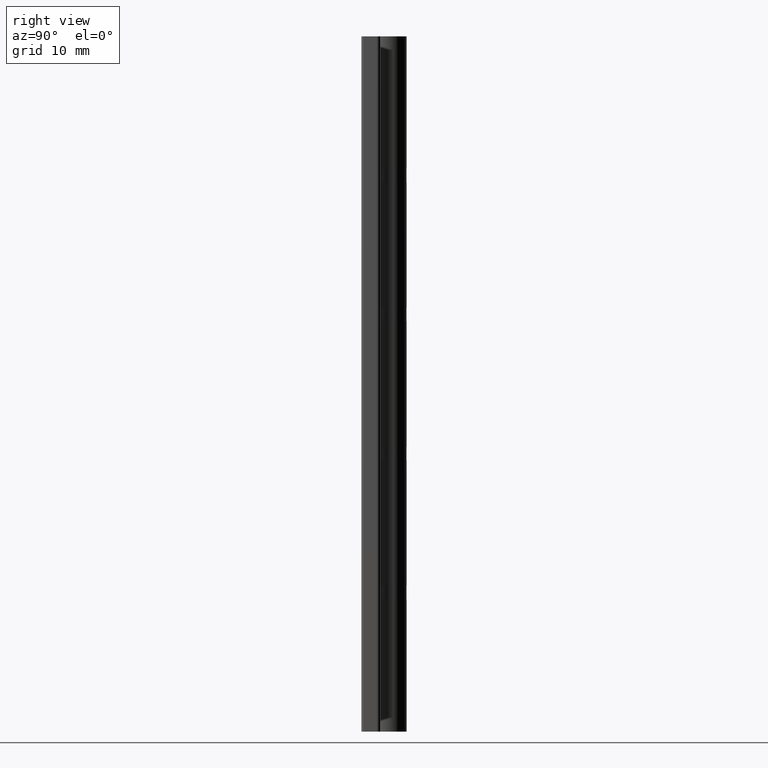
[diagram: clean part render]
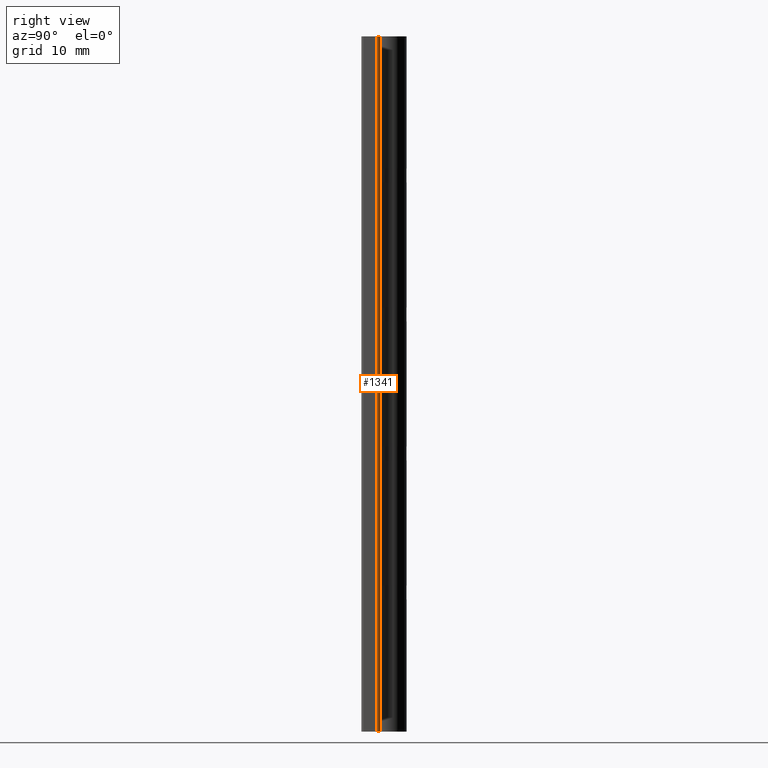
[diagram: same view with one face highlighted and labeled with its STEP entity id]
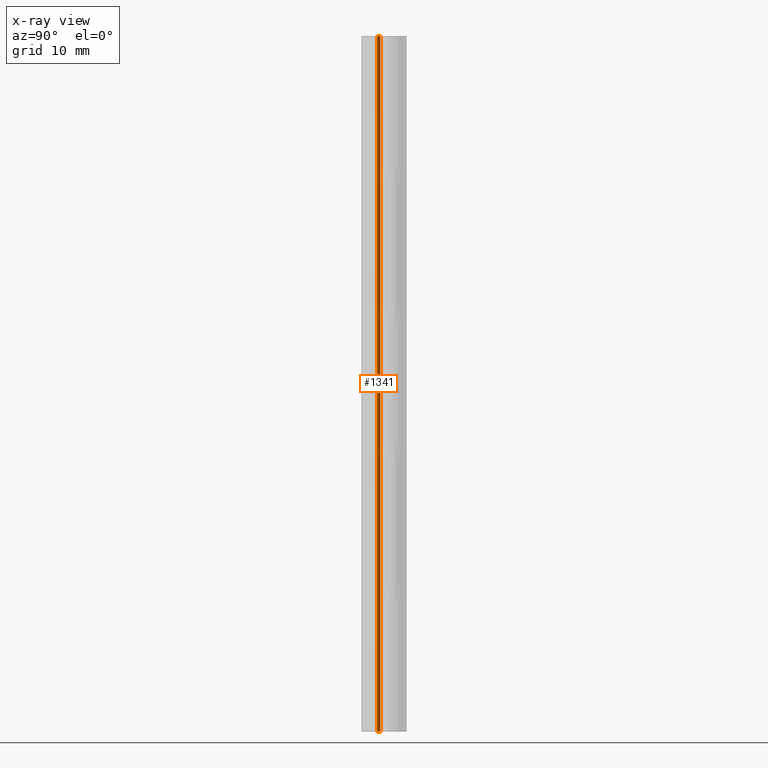
[diagram: x-ray of the same camera — body ghosted, the highlighted face saturated]
A machine part, right view. The second image highlights one B-rep face of the part: STEP entity #1341.
The next image is the same camera in x-ray: the body ghosted, the highlighted face saturated — about 0% of this face is hidden behind the body in this view.
In plain terms, the highlighted cylindrical surface (edge-blend (fillet) strip) has radius 0.5 mm, axis along (0, 0, -1).
Its self-contained STEP definition (entity closure, byte-faithful):
#92=CYLINDRICAL_SURFACE('',#1494,0.5);
#213=CIRCLE('',#1474,0.5);
#219=CIRCLE('',#1493,0.5);
#292=FACE_OUTER_BOUND('',#406,.T.);
#406=EDGE_LOOP('',(#1207,#1208,#1209,#1210));
#518=LINE('',#2283,#609);
#520=LINE('',#2289,#611);
#609=VECTOR('',#1881,100.);
#611=VECTOR('',#1889,100.);
#720=VERTEX_POINT('',#2240);
#721=VERTEX_POINT('',#2242);
#728=VERTEX_POINT('',#2281);
#729=VERTEX_POINT('',#2285);
#874=EDGE_CURVE('',#721,#720,#213,.T.);
#895=EDGE_CURVE('',#720,#728,#518,.T.);
#897=EDGE_CURVE('',#728,#729,#219,.T.);
#898=EDGE_CURVE('',#729,#721,#520,.T.);
#1207=ORIENTED_EDGE('',*,*,#897,.T.);
#1208=ORIENTED_EDGE('',*,*,#898,.T.);
#1209=ORIENTED_EDGE('',*,*,#874,.T.);
#1210=ORIENTED_EDGE('',*,*,#895,.T.);
#1341=ADVANCED_FACE('',(#292),#92,.T.);
#1474=AXIS2_PLACEMENT_3D('',#2243,#1830,#1831);
#1493=AXIS2_PLACEMENT_3D('',#2287,#1885,#1886);
#1494=AXIS2_PLACEMENT_3D('',#2288,#1887,#1888);
#1830=DIRECTION('center_axis',(0.,0.,-1.));
#1831=DIRECTION('ref_axis',(0.707106781186549,0.707106781186546,0.));
#1881=DIRECTION('',(0.,0.,-1.));
#1885=DIRECTION('center_axis',(0.,0.,1.));
#1886=DIRECTION('ref_axis',(0.707106781186549,0.707106781186546,0.));
#1887=DIRECTION('center_axis',(0.,0.,-1.));
#1888=DIRECTION('ref_axis',(0.707106781186549,0.707106781186546,0.));
#1889=DIRECTION('',(0.,0.,1.));
#2240=CARTESIAN_POINT('',(16.,-1.15,0.));
#2242=CARTESIAN_POINT('',(15.5,-0.649999999999999,0.));
#2243=CARTESIAN_POINT('Origin',(15.5,-1.15,0.));
#2281=CARTESIAN_POINT('',(16.,-1.15,-100.));
#2283=CARTESIAN_POINT('',(16.,-1.15,0.));
#2285=CARTESIAN_POINT('',(15.5,-0.649999999999999,-100.));
#2287=CARTESIAN_POINT('Origin',(15.5,-1.15,-100.));
#2288=CARTESIAN_POINT('Origin',(15.5,-1.15,0.));
#2289=CARTESIAN_POINT('',(15.5,-0.649999999999999,0.));